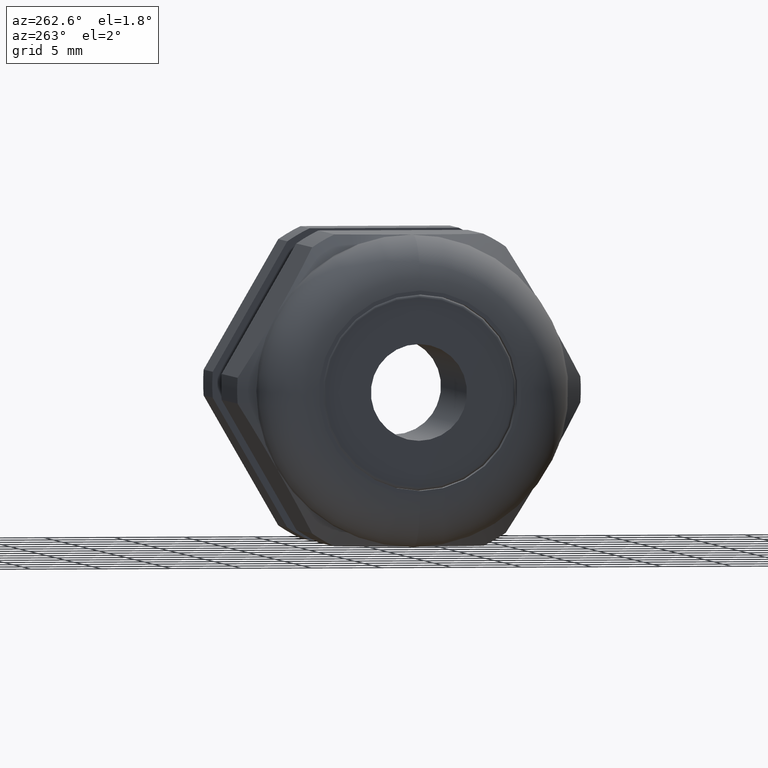
[diagram: clean part render]
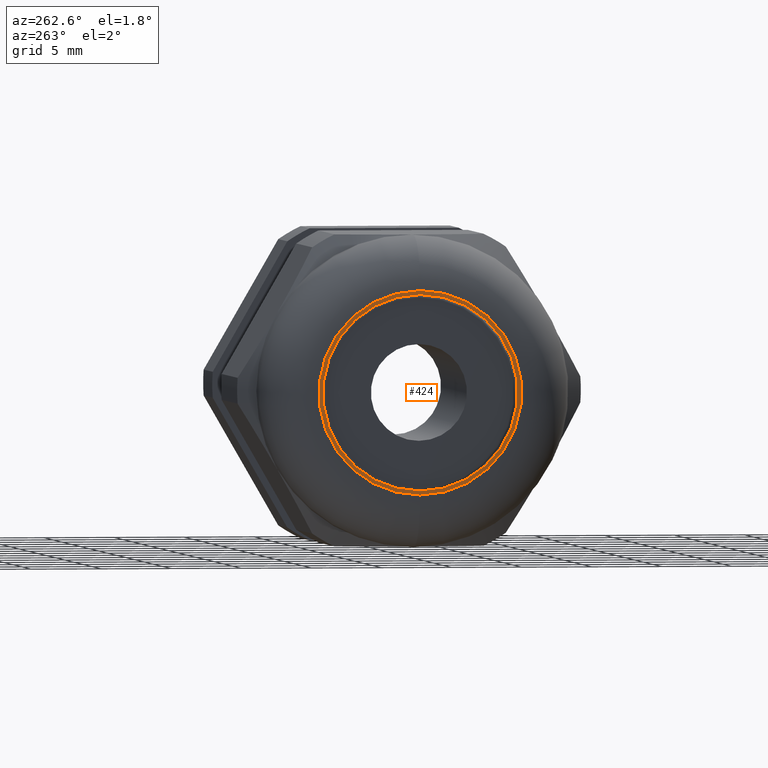
[diagram: same view with one face highlighted and labeled with its STEP entity id]
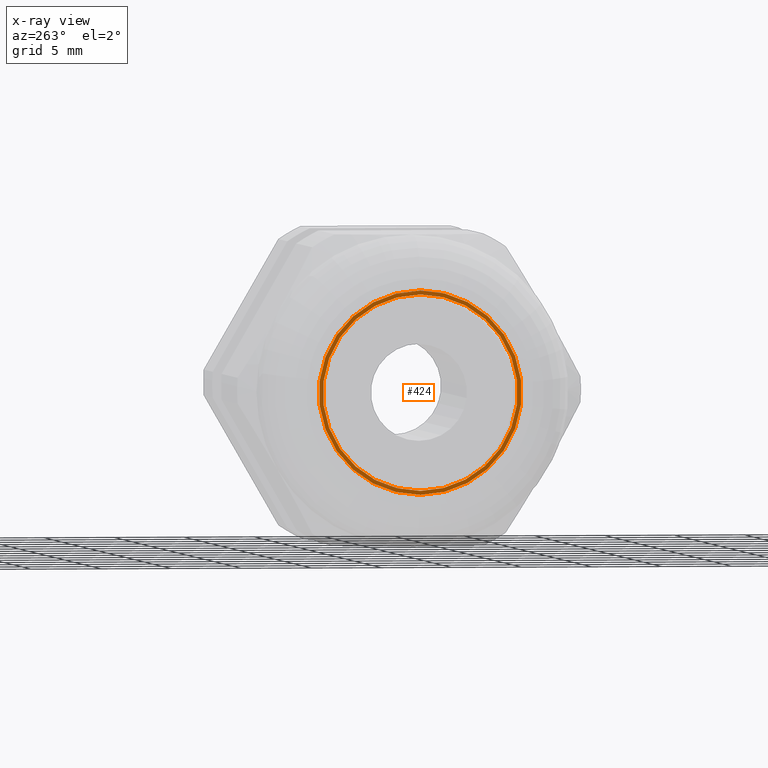
[diagram: x-ray of the same camera — body ghosted, the highlighted face saturated]
A machine part, auxiliary view. The second image highlights one B-rep face of the part: STEP entity #424.
The next image is the same camera in x-ray: the body ghosted, the highlighted face saturated — about 0% of this face is hidden behind the body in this view.
In plain terms, the highlighted planar face has unit normal (-1, 0, 0).
Its self-contained STEP definition (entity closure, byte-faithful):
#210 = VERTEX_POINT ( 'NONE', #1669 ) ;
#212 = EDGE_CURVE ( 'NONE', #213, #210, #1668, .T. ) ;
#213 = VERTEX_POINT ( 'NONE', #1663 ) ;
#388 = EDGE_CURVE ( 'NONE', #389, #455, #2061, .T. ) ;
#389 = VERTEX_POINT ( 'NONE', #2057 ) ;
#424 = ADVANCED_FACE ( 'NONE', ( #2118, #2117 ), #2116, .T. ) ;
#425 = EDGE_LOOP ( 'NONE', ( #478, #479 ) ) ;
#455 = VERTEX_POINT ( 'NONE', #2182 ) ;
#478 = ORIENTED_EDGE ( 'NONE', *, *, #212, .T. ) ;
#479 = ORIENTED_EDGE ( 'NONE', *, *, #480, .T. ) ;
#480 = EDGE_CURVE ( 'NONE', #210, #213, #2210, .T. ) ;
#481 = EDGE_LOOP ( 'NONE', ( #482, #484 ) ) ;
#482 = ORIENTED_EDGE ( 'NONE', *, *, #483, .T. ) ;
#483 = EDGE_CURVE ( 'NONE', #455, #389, #2200, .T. ) ;
#484 = ORIENTED_EDGE ( 'NONE', *, *, #388, .T. ) ;
#1663 = CARTESIAN_POINT ( 'NONE',  ( -1.289999999999999800, 0.0000000000000000000, 0.2850000000000000300 ) ) ;
#1664 = DIRECTION ( 'NONE',  ( 0.0000000000000000000, 0.0000000000000000000, 1.000000000000000000 ) ) ;
#1665 = DIRECTION ( 'NONE',  ( -1.000000000000000000, 0.0000000000000000000, 0.0000000000000000000 ) ) ;
#1666 = CARTESIAN_POINT ( 'NONE',  ( -1.289999999999999800, 0.0000000000000000000, 0.0000000000000000000 ) ) ;
#1667 = AXIS2_PLACEMENT_3D ( 'NONE', #1666, #1665, #1664 ) ;
#1668 = CIRCLE ( 'NONE', #1667, 0.2850000000000000300 ) ;
#1669 = CARTESIAN_POINT ( 'NONE',  ( -1.289999999999999800, 4.408728476930471600E-017, -0.2850000000000000300 ) ) ;
#2057 = CARTESIAN_POINT ( 'NONE',  ( -1.289999999999999800, 3.352470612665879100E-017, 0.2737499999999999900 ) ) ;
#2058 = DIRECTION ( 'NONE',  ( 0.0000000000000000000, 0.0000000000000000000, -1.000000000000000000 ) ) ;
#2059 = DIRECTION ( 'NONE',  ( 1.000000000000000000, 0.0000000000000000000, 0.0000000000000000000 ) ) ;
#2060 = AXIS2_PLACEMENT_3D ( 'NONE', #2065, #2059, #2058 ) ;
#2061 = CIRCLE ( 'NONE', #2060, 0.2737499999999999900 ) ;
#2065 = CARTESIAN_POINT ( 'NONE',  ( -1.289999999999999800, 0.0000000000000000000, 0.0000000000000000000 ) ) ;
#2112 = DIRECTION ( 'NONE',  ( 0.0000000000000000000, 0.0000000000000000000, 1.000000000000000000 ) ) ;
#2113 = DIRECTION ( 'NONE',  ( -1.000000000000000000, 0.0000000000000000000, 0.0000000000000000000 ) ) ;
#2114 = CARTESIAN_POINT ( 'NONE',  ( -1.289999999999999800, 0.4349999999999999400, 0.0000000000000000000 ) ) ;
#2115 = AXIS2_PLACEMENT_3D ( 'NONE', #2114, #2113, #2112 ) ;
#2116 = PLANE ( 'NONE',  #2115 ) ;
#2117 = FACE_BOUND ( 'NONE', #481, .T. ) ;
#2118 = FACE_OUTER_BOUND ( 'NONE', #425, .T. ) ;
#2182 = CARTESIAN_POINT ( 'NONE',  ( -1.289999999999999800, 0.0000000000000000000, -0.2737499999999999900 ) ) ;
#2198 = CARTESIAN_POINT ( 'NONE',  ( -1.289999999999999800, 0.0000000000000000000, 0.0000000000000000000 ) ) ;
#2199 = AXIS2_PLACEMENT_3D ( 'NONE', #2198, #2260, #2259 ) ;
#2200 = CIRCLE ( 'NONE', #2199, 0.2737499999999999900 ) ;
#2202 = DIRECTION ( 'NONE',  ( 0.0000000000000000000, 0.0000000000000000000, 1.000000000000000000 ) ) ;
#2203 = DIRECTION ( 'NONE',  ( -1.000000000000000000, 0.0000000000000000000, 0.0000000000000000000 ) ) ;
#2204 = CARTESIAN_POINT ( 'NONE',  ( -1.289999999999999800, 0.0000000000000000000, 0.0000000000000000000 ) ) ;
#2205 = AXIS2_PLACEMENT_3D ( 'NONE', #2204, #2203, #2202 ) ;
#2210 = CIRCLE ( 'NONE', #2205, 0.2850000000000000300 ) ;
#2259 = DIRECTION ( 'NONE',  ( 0.0000000000000000000, 0.0000000000000000000, -1.000000000000000000 ) ) ;
#2260 = DIRECTION ( 'NONE',  ( 1.000000000000000000, 0.0000000000000000000, 0.0000000000000000000 ) ) ;